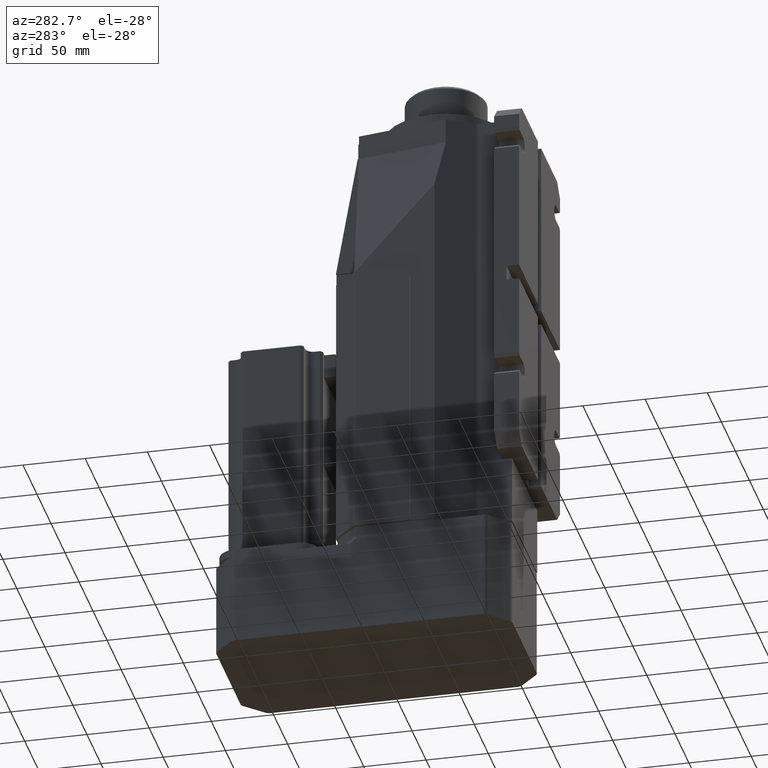
[diagram: clean part render]
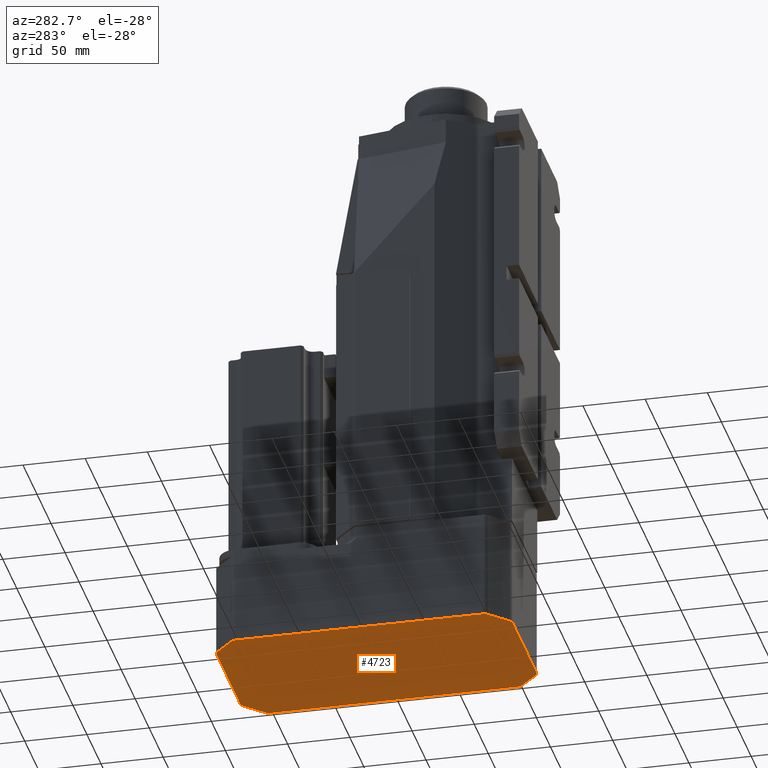
[diagram: same view with one face highlighted and labeled with its STEP entity id]
A machine part, auxiliary view. The second image highlights one B-rep face of the part: STEP entity #4723.
In plain terms, the highlighted planar face has unit normal (0, 0, 1).
Its self-contained STEP definition (entity closure, byte-faithful):
#4522 = EDGE_CURVE ( 'NONE', #4537, #4544, #8659, .T. ) ;
#4526 = EDGE_CURVE ( 'NONE', #4544, #4527, #8648, .T. ) ;
#4527 = VERTEX_POINT ( 'NONE', #8708 ) ;
#4534 = VERTEX_POINT ( 'NONE', #8699 ) ;
#4536 = EDGE_CURVE ( 'NONE', #4534, #4537, #8698, .T. ) ;
#4537 = VERTEX_POINT ( 'NONE', #8693 ) ;
#4544 = VERTEX_POINT ( 'NONE', #8678 ) ;
#4563 = EDGE_CURVE ( 'NONE', #4582, #4564, #8772, .T. ) ;
#4564 = VERTEX_POINT ( 'NONE', #8768 ) ;
#4574 = EDGE_CURVE ( 'NONE', #4594, #4575, #8757, .T. ) ;
#4575 = VERTEX_POINT ( 'NONE', #8752 ) ;
#4582 = VERTEX_POINT ( 'NONE', #8803 ) ;
#4586 = EDGE_CURVE ( 'NONE', #4575, #4582, #8802, .T. ) ;
#4593 = EDGE_CURVE ( 'NONE', #4527, #4594, #8792, .T. ) ;
#4594 = VERTEX_POINT ( 'NONE', #8788 ) ;
#4600 = EDGE_CURVE ( 'NONE', #4672, #4601, #8838, .T. ) ;
#4601 = VERTEX_POINT ( 'NONE', #8833 ) ;
#4602 = EDGE_CURVE ( 'NONE', #4618, #4625, #8832, .T. ) ;
#4606 = EDGE_CURVE ( 'NONE', #4625, #4607, #8826, .T. ) ;
#4607 = VERTEX_POINT ( 'NONE', #8817 ) ;
#4617 = EDGE_CURVE ( 'NONE', #4631, #4618, #8870, .T. ) ;
#4618 = VERTEX_POINT ( 'NONE', #8865 ) ;
#4625 = VERTEX_POINT ( 'NONE', #8850 ) ;
#4630 = EDGE_CURVE ( 'NONE', #4564, #4631, #8849, .T. ) ;
#4631 = VERTEX_POINT ( 'NONE', #8845 ) ;
#4639 = EDGE_LOOP ( 'NONE', ( #4640, #4641, #4642, #4643, #4708, #4709, #4710, #4711, #4712, #4713, #4714, #4715, #4716, #4717, #4705, #4706 ) ) ;
#4640 = ORIENTED_EDGE ( 'NONE', *, *, #4644, .F. ) ;
#4641 = ORIENTED_EDGE ( 'NONE', *, *, #4666, .F. ) ;
#4642 = ORIENTED_EDGE ( 'NONE', *, *, #4600, .F. ) ;
#4643 = ORIENTED_EDGE ( 'NONE', *, *, #4671, .F. ) ;
#4644 = EDGE_CURVE ( 'NONE', #4662, #4645, #8896, .T. ) ;
#4645 = VERTEX_POINT ( 'NONE', #8892 ) ;
#4653 = EDGE_CURVE ( 'NONE', #4645, #4534, #8881, .T. ) ;
#4662 = VERTEX_POINT ( 'NONE', #8928 ) ;
#4666 = EDGE_CURVE ( 'NONE', #4601, #4662, #8927, .T. ) ;
#4671 = EDGE_CURVE ( 'NONE', #4607, #4672, #8921, .T. ) ;
#4672 = VERTEX_POINT ( 'NONE', #8913 ) ;
#4705 = ORIENTED_EDGE ( 'NONE', *, *, #4536, .F. ) ;
#4706 = ORIENTED_EDGE ( 'NONE', *, *, #4653, .F. ) ;
#4708 = ORIENTED_EDGE ( 'NONE', *, *, #4606, .F. ) ;
#4709 = ORIENTED_EDGE ( 'NONE', *, *, #4602, .F. ) ;
#4710 = ORIENTED_EDGE ( 'NONE', *, *, #4617, .F. ) ;
#4711 = ORIENTED_EDGE ( 'NONE', *, *, #4630, .F. ) ;
#4712 = ORIENTED_EDGE ( 'NONE', *, *, #4563, .F. ) ;
#4713 = ORIENTED_EDGE ( 'NONE', *, *, #4586, .F. ) ;
#4714 = ORIENTED_EDGE ( 'NONE', *, *, #4574, .F. ) ;
#4715 = ORIENTED_EDGE ( 'NONE', *, *, #4593, .F. ) ;
#4716 = ORIENTED_EDGE ( 'NONE', *, *, #4526, .F. ) ;
#4717 = ORIENTED_EDGE ( 'NONE', *, *, #4522, .F. ) ;
#4723 = ADVANCED_FACE ( 'NONE', ( #8938 ), #8937, .F. ) ;
#8645 = DIRECTION ( 'NONE',  ( 1.000000000000000000, 0.0000000000000000000, 0.0000000000000000000 ) ) ;
#8646 = DIRECTION ( 'NONE',  ( 0.0000000000000000000, 0.0000000000000000000, 1.000000000000000000 ) ) ;
#8647 = AXIS2_PLACEMENT_3D ( 'NONE', #8653, #8646, #8645 ) ;
#8648 = CIRCLE ( 'NONE', #8647, 4.999999999999997300 ) ;
#8653 = CARTESIAN_POINT ( 'NONE',  ( 42.92893218813445300, 169.9999999999999700, -88.00000000000000000 ) ) ;
#8656 = DIRECTION ( 'NONE',  ( -0.7071067811865489100, 0.7071067811865462400, 0.0000000000000000000 ) ) ;
#8657 = VECTOR ( 'NONE', #8656, 1000.000000000000000 ) ;
#8658 = CARTESIAN_POINT ( 'NONE',  ( 61.03553390593275200, 158.9644660940672300, -88.00000000000000000 ) ) ;
#8659 = LINE ( 'NONE', #8658, #8657 ) ;
#8678 = CARTESIAN_POINT ( 'NONE',  ( 46.46446609406717700, 173.5355339059327400, -88.00000000000000000 ) ) ;
#8693 = CARTESIAN_POINT ( 'NONE',  ( 61.03553390593274500, 158.9644660940672300, -88.00000000000000000 ) ) ;
#8694 = DIRECTION ( 'NONE',  ( -1.000000000000000000, -1.110223024625157200E-014, 0.0000000000000000000 ) ) ;
#8695 = DIRECTION ( 'NONE',  ( 0.0000000000000000000, 0.0000000000000000000, 1.000000000000000000 ) ) ;
#8696 = CARTESIAN_POINT ( 'NONE',  ( 57.49999999999999300, 155.4289321881344700, -88.00000000000000000 ) ) ;
#8697 = AXIS2_PLACEMENT_3D ( 'NONE', #8696, #8695, #8694 ) ;
#8698 = CIRCLE ( 'NONE', #8697, 4.999999999999997300 ) ;
#8699 = CARTESIAN_POINT ( 'NONE',  ( 62.50000000000000000, 155.4289321881344700, -88.00000000000000000 ) ) ;
#8708 = CARTESIAN_POINT ( 'NONE',  ( 42.92893218813445300, 175.0000000000000300, -88.00000000000000000 ) ) ;
#8711 = CARTESIAN_POINT ( 'NONE',  ( -57.50000000000000000, 155.4289321881343800, -88.00000000000000000 ) ) ;
#8752 = CARTESIAN_POINT ( 'NONE',  ( -46.46446609406722700, 173.5355339059327400, -88.00000000000000000 ) ) ;
#8753 = DIRECTION ( 'NONE',  ( -1.000000000000000000, 1.665334536937735800E-014, 0.0000000000000000000 ) ) ;
#8754 = DIRECTION ( 'NONE',  ( 0.0000000000000000000, 0.0000000000000000000, 1.000000000000000000 ) ) ;
#8755 = CARTESIAN_POINT ( 'NONE',  ( -42.92893218813448200, 169.9999999999999700, -88.00000000000000000 ) ) ;
#8756 = AXIS2_PLACEMENT_3D ( 'NONE', #8755, #8754, #8753 ) ;
#8757 = CIRCLE ( 'NONE', #8756, 4.999999999999997300 ) ;
#8768 = CARTESIAN_POINT ( 'NONE',  ( -62.50000000000000000, 155.4289321881343800, -88.00000000000000000 ) ) ;
#8769 = DIRECTION ( 'NONE',  ( 1.000000000000000000, 0.0000000000000000000, 0.0000000000000000000 ) ) ;
#8770 = DIRECTION ( 'NONE',  ( 0.0000000000000000000, 0.0000000000000000000, 1.000000000000000000 ) ) ;
#8771 = AXIS2_PLACEMENT_3D ( 'NONE', #8711, #8770, #8769 ) ;
#8772 = CIRCLE ( 'NONE', #8771, 4.999999999999997300 ) ;
#8788 = CARTESIAN_POINT ( 'NONE',  ( -42.92893218813448200, 175.0000000000000000, -88.00000000000000000 ) ) ;
#8789 = DIRECTION ( 'NONE',  ( -1.000000000000000000, 0.0000000000000000000, 0.0000000000000000000 ) ) ;
#8790 = VECTOR ( 'NONE', #8789, 1000.000000000000000 ) ;
#8791 = CARTESIAN_POINT ( 'NONE',  ( -62.49999999999997200, 175.0000000000000300, -88.00000000000000000 ) ) ;
#8792 = LINE ( 'NONE', #8791, #8790 ) ;
#8799 = DIRECTION ( 'NONE',  ( -0.7071067811865460200, -0.7071067811865489100, 0.0000000000000000000 ) ) ;
#8800 = VECTOR ( 'NONE', #8799, 1000.000000000000100 ) ;
#8801 = CARTESIAN_POINT ( 'NONE',  ( -46.46446609406722700, 173.5355339059327100, -88.00000000000000000 ) ) ;
#8802 = LINE ( 'NONE', #8801, #8800 ) ;
#8803 = CARTESIAN_POINT ( 'NONE',  ( -61.03553390593275200, 158.9644660940671200, -88.00000000000000000 ) ) ;
#8817 = CARTESIAN_POINT ( 'NONE',  ( -42.92893218813442500, -63.00000000000000000, -88.00000000000000000 ) ) ;
#8818 = DIRECTION ( 'NONE',  ( 1.000000000000000000, 0.0000000000000000000, 0.0000000000000000000 ) ) ;
#8819 = DIRECTION ( 'NONE',  ( 0.0000000000000000000, 0.0000000000000000000, 1.000000000000000000 ) ) ;
#8820 = CARTESIAN_POINT ( 'NONE',  ( -42.92893218813442500, -58.00000000000000000, -88.00000000000000000 ) ) ;
#8821 = AXIS2_PLACEMENT_3D ( 'NONE', #8820, #8819, #8818 ) ;
#8826 = CIRCLE ( 'NONE', #8821, 4.999999999999997300 ) ;
#8829 = DIRECTION ( 'NONE',  ( 0.7071067811865485700, -0.7071067811865465700, 0.0000000000000000000 ) ) ;
#8830 = VECTOR ( 'NONE', #8829, 1000.000000000000000 ) ;
#8831 = CARTESIAN_POINT ( 'NONE',  ( -61.03553390593270900, -46.96446609406724800, -88.00000000000000000 ) ) ;
#8832 = LINE ( 'NONE', #8831, #8830 ) ;
#8833 = CARTESIAN_POINT ( 'NONE',  ( 46.46446609406723400, -61.53553390593273800, -88.00000000000000000 ) ) ;
#8834 = DIRECTION ( 'NONE',  ( -1.000000000000000000, 0.0000000000000000000, 0.0000000000000000000 ) ) ;
#8835 = DIRECTION ( 'NONE',  ( 0.0000000000000000000, 0.0000000000000000000, 1.000000000000000000 ) ) ;
#8836 = CARTESIAN_POINT ( 'NONE',  ( 42.92893218813448200, -58.00000000000000000, -88.00000000000000000 ) ) ;
#8837 = AXIS2_PLACEMENT_3D ( 'NONE', #8836, #8835, #8834 ) ;
#8838 = CIRCLE ( 'NONE', #8837, 4.999999999999997300 ) ;
#8845 = CARTESIAN_POINT ( 'NONE',  ( -62.49999999999998600, -43.42893218813451000, -88.00000000000000000 ) ) ;
#8846 = DIRECTION ( 'NONE',  ( 0.0000000000000000000, -1.000000000000000000, 0.0000000000000000000 ) ) ;
#8847 = VECTOR ( 'NONE', #8846, 1000.000000000000000 ) ;
#8848 = CARTESIAN_POINT ( 'NONE',  ( -62.50000000000000000, -63.00000000000000000, -88.00000000000000000 ) ) ;
#8849 = LINE ( 'NONE', #8848, #8847 ) ;
#8850 = CARTESIAN_POINT ( 'NONE',  ( -46.46446609406717000, -61.53553390593275200, -88.00000000000000000 ) ) ;
#8865 = CARTESIAN_POINT ( 'NONE',  ( -61.03553390593270900, -46.96446609406724800, -88.00000000000000000 ) ) ;
#8866 = DIRECTION ( 'NONE',  ( -1.000000000000000000, 0.0000000000000000000, 0.0000000000000000000 ) ) ;
#8867 = DIRECTION ( 'NONE',  ( 0.0000000000000000000, 0.0000000000000000000, 1.000000000000000000 ) ) ;
#8868 = CARTESIAN_POINT ( 'NONE',  ( -57.49999999999997200, -43.42893218813451000, -88.00000000000000000 ) ) ;
#8869 = AXIS2_PLACEMENT_3D ( 'NONE', #8868, #8867, #8866 ) ;
#8870 = CIRCLE ( 'NONE', #8869, 4.999999999999997300 ) ;
#8878 = DIRECTION ( 'NONE',  ( 0.0000000000000000000, 1.000000000000000000, 0.0000000000000000000 ) ) ;
#8879 = VECTOR ( 'NONE', #8878, 1000.000000000000000 ) ;
#8880 = CARTESIAN_POINT ( 'NONE',  ( 62.50000000000001400, -63.00000000000000000, -88.00000000000000000 ) ) ;
#8881 = LINE ( 'NONE', #8880, #8879 ) ;
#8892 = CARTESIAN_POINT ( 'NONE',  ( 62.50000000000001400, -43.42893218813440400, -88.00000000000000000 ) ) ;
#8893 = DIRECTION ( 'NONE',  ( 1.000000000000000000, 0.0000000000000000000, 0.0000000000000000000 ) ) ;
#8894 = DIRECTION ( 'NONE',  ( 0.0000000000000000000, 0.0000000000000000000, 1.000000000000000000 ) ) ;
#8895 = AXIS2_PLACEMENT_3D ( 'NONE', #8900, #8894, #8893 ) ;
#8896 = CIRCLE ( 'NONE', #8895, 4.999999999999997300 ) ;
#8900 = CARTESIAN_POINT ( 'NONE',  ( 57.50000000000001400, -43.42893218813441100, -88.00000000000000000 ) ) ;
#8913 = CARTESIAN_POINT ( 'NONE',  ( 42.92893218813448200, -63.00000000000000000, -88.00000000000000000 ) ) ;
#8914 = DIRECTION ( 'NONE',  ( 1.000000000000000000, 0.0000000000000000000, 0.0000000000000000000 ) ) ;
#8915 = VECTOR ( 'NONE', #8914, 1000.000000000000000 ) ;
#8916 = CARTESIAN_POINT ( 'NONE',  ( -62.49999999999997200, -63.00000000000000000, -88.00000000000000000 ) ) ;
#8921 = LINE ( 'NONE', #8916, #8915 ) ;
#8924 = DIRECTION ( 'NONE',  ( 0.7071067811865454600, 0.7071067811865495700, 0.0000000000000000000 ) ) ;
#8925 = VECTOR ( 'NONE', #8924, 1000.000000000000000 ) ;
#8926 = CARTESIAN_POINT ( 'NONE',  ( 46.46446609406723400, -61.53553390593274500, -88.00000000000000000 ) ) ;
#8927 = LINE ( 'NONE', #8926, #8925 ) ;
#8928 = CARTESIAN_POINT ( 'NONE',  ( 61.03553390593275900, -46.96446609406714100, -88.00000000000000000 ) ) ;
#8937 = PLANE ( 'NONE',  #8997 ) ;
#8938 = FACE_OUTER_BOUND ( 'NONE', #4639, .T. ) ;
#8994 = DIRECTION ( 'NONE',  ( 1.000000000000000000, 0.0000000000000000000, 0.0000000000000000000 ) ) ;
#8995 = DIRECTION ( 'NONE',  ( 0.0000000000000000000, 0.0000000000000000000, 1.000000000000000000 ) ) ;
#8996 = CARTESIAN_POINT ( 'NONE',  ( -62.49999999999997200, -63.00000000000000000, -88.00000000000000000 ) ) ;
#8997 = AXIS2_PLACEMENT_3D ( 'NONE', #8996, #8995, #8994 ) ;